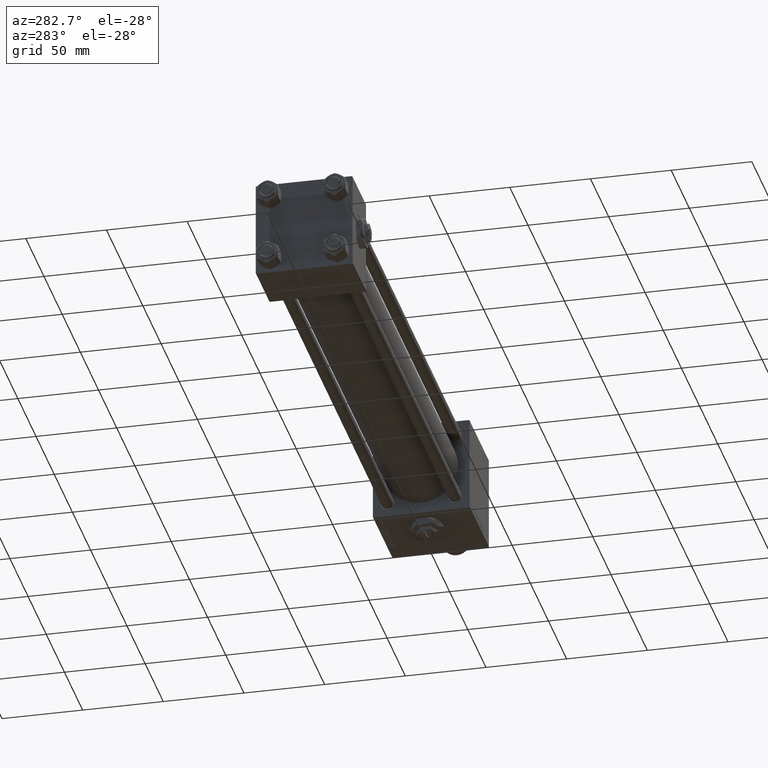
[diagram: clean part render]
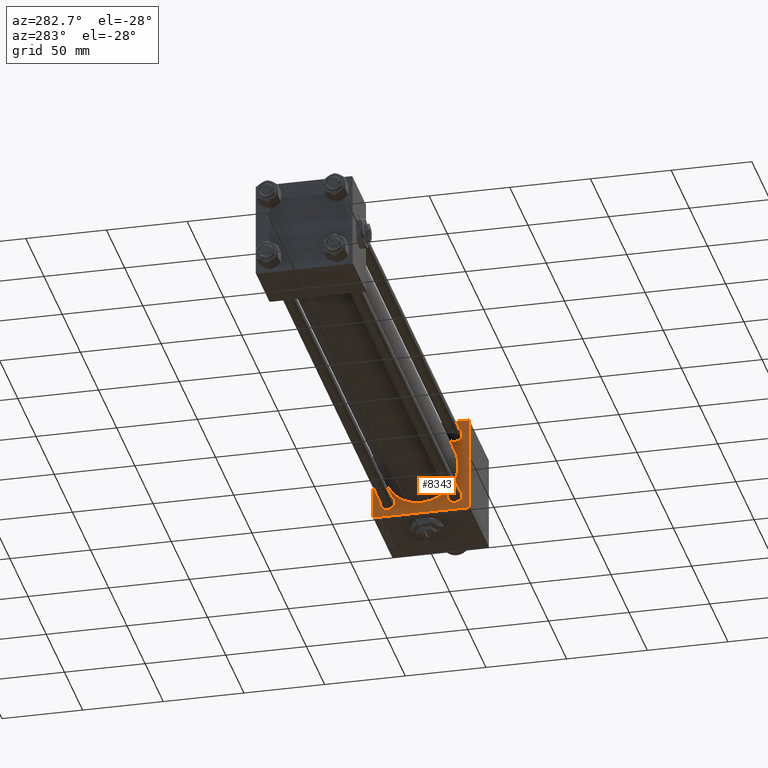
[diagram: same view with one face highlighted and labeled with its STEP entity id]
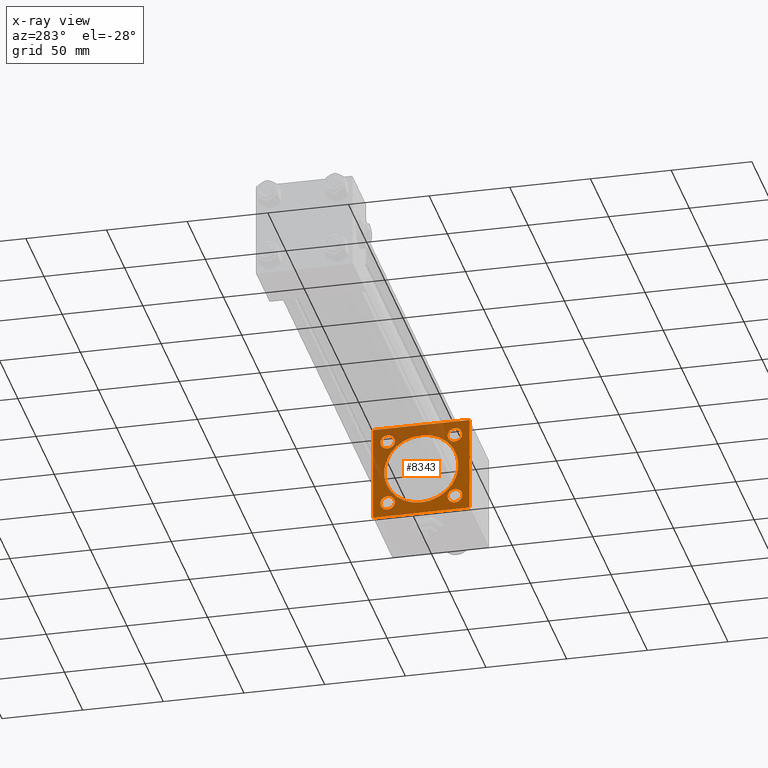
[diagram: x-ray of the same camera — body ghosted, the highlighted face saturated]
A machine part, auxiliary view. The second image highlights one B-rep face of the part: STEP entity #8343.
The next image is the same camera in x-ray: the body ghosted, the highlighted face saturated — about 32% of this face is hidden behind the body in this view.
In plain terms, the highlighted planar face has unit normal (-1, 0, 0).
Its self-contained STEP definition (entity closure, byte-faithful):
#339 = EDGE_CURVE ( 'NONE', #11931, #34737, #27460, .T. ) ;
#722 = CARTESIAN_POINT ( 'NONE',  ( 321.9999999999999432, 20.84999999999999787, -20.85000000000000142 ) ) ;
#1266 = EDGE_LOOP ( 'NONE', ( #37156, #42604 ) ) ;
#1337 = FACE_BOUND ( 'NONE', #16806, .T. ) ;
#2022 = VECTOR ( 'NONE', #23811, 1000.000000000000114 ) ;
#2183 = ORIENTED_EDGE ( 'NONE', *, *, #47264, .T. ) ;
#2337 = DIRECTION ( 'NONE',  ( 1.000000000000000000, -0.000000000000000000, 0.000000000000000000 ) ) ;
#2577 = CIRCLE ( 'NONE', #25502, 4.500000000000007105 ) ;
#2674 = CARTESIAN_POINT ( 'NONE',  ( 321.9999999999999432, -29.74999999999999645, -29.74999999999999645 ) ) ;
#3078 = LINE ( 'NONE', #51502, #2022 ) ;
#3226 = VECTOR ( 'NONE', #39651, 1000.000000000000114 ) ;
#4434 = AXIS2_PLACEMENT_3D ( 'NONE', #42180, #45932, #46195 ) ;
#4811 = CARTESIAN_POINT ( 'NONE',  ( 321.9999999999999432, 0.000000000000000000, 0.000000000000000000 ) ) ;
#5101 = EDGE_CURVE ( 'NONE', #16233, #6969, #3078, .T. ) ;
#5479 = LINE ( 'NONE', #18246, #7486 ) ;
#5594 = FACE_BOUND ( 'NONE', #8651, .T. ) ;
#5621 = ORIENTED_EDGE ( 'NONE', *, *, #29439, .T. ) ;
#5832 = EDGE_CURVE ( 'NONE', #40791, #6969, #32460, .T. ) ;
#6033 = ORIENTED_EDGE ( 'NONE', *, *, #5832, .F. ) ;
#6686 = DIRECTION ( 'NONE',  ( 0.000000000000000000, 0.000000000000000000, 1.000000000000000000 ) ) ;
#6966 = AXIS2_PLACEMENT_3D ( 'NONE', #11741, #23952, #6686 ) ;
#6969 = VERTEX_POINT ( 'NONE', #24152 ) ;
#6975 = CARTESIAN_POINT ( 'NONE',  ( 321.9999999999999432, -2.602085213965210642E-15, 0.000000000000000000 ) ) ;
#7171 = VERTEX_POINT ( 'NONE', #21218 ) ;
#7348 = LINE ( 'NONE', #21156, #46568 ) ;
#7486 = VECTOR ( 'NONE', #21700, 1000.000000000000000 ) ;
#7760 = ORIENTED_EDGE ( 'NONE', *, *, #34151, .T. ) ;
#8044 = ORIENTED_EDGE ( 'NONE', *, *, #51258, .T. ) ;
#8343 = ADVANCED_FACE ( 'NONE', ( #5594, #1337, #25023, #16801, #17575, #41521 ), #33268, .T. ) ;
#8410 = AXIS2_PLACEMENT_3D ( 'NONE', #9290, #42776, #22032 ) ;
#8547 = EDGE_LOOP ( 'NONE', ( #9555, #15911 ) ) ;
#8651 = EDGE_LOOP ( 'NONE', ( #2183, #43946 ) ) ;
#8684 = CARTESIAN_POINT ( 'NONE',  ( 321.9999999999999432, -20.84999999999999076, -20.85000000000000497 ) ) ;
#8994 = DIRECTION ( 'NONE',  ( -0.000000000000000000, -0.7071067811865474617, -0.7071067811865474617 ) ) ;
#9290 = CARTESIAN_POINT ( 'NONE',  ( 321.9999999999999432, 20.84999999999999787, 20.85000000000000142 ) ) ;
#9442 = VERTEX_POINT ( 'NONE', #19220 ) ;
#9555 = ORIENTED_EDGE ( 'NONE', *, *, #10619, .T. ) ;
#10205 = DIRECTION ( 'NONE',  ( 0.000000000000000000, 0.000000000000000000, 1.000000000000000000 ) ) ;
#10429 = DIRECTION ( 'NONE',  ( 1.000000000000000000, -0.000000000000000000, 0.000000000000000000 ) ) ;
#10619 = EDGE_CURVE ( 'NONE', #30481, #9442, #32806, .T. ) ;
#11227 = EDGE_CURVE ( 'NONE', #34737, #11931, #22624, .T. ) ;
#11741 = CARTESIAN_POINT ( 'NONE',  ( 321.9999999999999432, -20.84999999999999076, 20.85000000000000497 ) ) ;
#11923 = VERTEX_POINT ( 'NONE', #31714 ) ;
#11931 = VERTEX_POINT ( 'NONE', #51679 ) ;
#12974 = DIRECTION ( 'NONE',  ( 1.000000000000000000, -0.000000000000000000, 0.000000000000000000 ) ) ;
#13471 = DIRECTION ( 'NONE',  ( 0.000000000000000000, 0.000000000000000000, -1.000000000000000000 ) ) ;
#14350 = CIRCLE ( 'NONE', #26192, 4.500000000000007105 ) ;
#14600 = CARTESIAN_POINT ( 'NONE',  ( 321.9999999999999432, -30.00000000000000000, 29.50000000000004619 ) ) ;
#15791 = DIRECTION ( 'NONE',  ( 0.000000000000000000, 0.7071067811865474617, -0.7071067811865474617 ) ) ;
#15911 = ORIENTED_EDGE ( 'NONE', *, *, #16268, .T. ) ;
#16176 = EDGE_CURVE ( 'NONE', #28272, #23732, #45769, .T. ) ;
#16233 = VERTEX_POINT ( 'NONE', #14600 ) ;
#16268 = EDGE_CURVE ( 'NONE', #9442, #30481, #14350, .T. ) ;
#16801 = FACE_BOUND ( 'NONE', #8547, .T. ) ;
#16806 = EDGE_LOOP ( 'NONE', ( #27942, #7760 ) ) ;
#17575 = FACE_BOUND ( 'NONE', #1266, .T. ) ;
#18246 = CARTESIAN_POINT ( 'NONE',  ( 321.9999999999999432, 30.00000000000000000, -29.99999999999999289 ) ) ;
#18499 = EDGE_CURVE ( 'NONE', #45139, #7171, #5479, .T. ) ;
#19220 = CARTESIAN_POINT ( 'NONE',  ( 321.9999999999999432, -20.84999999999999076, -25.35000000000001208 ) ) ;
#20540 = AXIS2_PLACEMENT_3D ( 'NONE', #722, #12974, #36903 ) ;
#21017 = ORIENTED_EDGE ( 'NONE', *, *, #25971, .T. ) ;
#21040 = DIRECTION ( 'NONE',  ( -1.000000000000000000, 0.000000000000000000, -0.000000000000000000 ) ) ;
#21156 = CARTESIAN_POINT ( 'NONE',  ( 321.9999999999999432, 30.00000000000000000, 30.00000000000000000 ) ) ;
#21218 = CARTESIAN_POINT ( 'NONE',  ( 321.9999999999999432, -29.50000000000000000, -30.00000000000000000 ) ) ;
#21422 = DIRECTION ( 'NONE',  ( 1.000000000000000000, -0.000000000000000000, 0.000000000000000000 ) ) ;
#21700 = DIRECTION ( 'NONE',  ( 0.000000000000000000, -1.000000000000000000, -1.156482317317871478E-16 ) ) ;
#21814 = DIRECTION ( 'NONE',  ( -0.000000000000000000, 0.000000000000000000, 1.000000000000000000 ) ) ;
#21850 = CARTESIAN_POINT ( 'NONE',  ( 321.9999999999999432, 20.84999999999999787, -20.85000000000000142 ) ) ;
#22032 = DIRECTION ( 'NONE',  ( 0.000000000000000000, 0.000000000000000000, 1.000000000000000000 ) ) ;
#22624 = CIRCLE ( 'NONE', #26876, 23.00000000000000000 ) ;
#22798 = CARTESIAN_POINT ( 'NONE',  ( 321.9999999999999432, -20.84999999999999076, 16.34999999999999787 ) ) ;
#23732 = VERTEX_POINT ( 'NONE', #26528 ) ;
#23811 = DIRECTION ( 'NONE',  ( -0.000000000000000000, 0.7071067811865474617, 0.7071067811865474617 ) ) ;
#23952 = DIRECTION ( 'NONE',  ( 1.000000000000000000, -0.000000000000000000, 0.000000000000000000 ) ) ;
#23974 = DIRECTION ( 'NONE',  ( 0.000000000000000000, 0.000000000000000000, -1.000000000000000000 ) ) ;
#24152 = CARTESIAN_POINT ( 'NONE',  ( 321.9999999999999432, -29.50000000000005329, 29.99999999999999289 ) ) ;
#24408 = LINE ( 'NONE', #49438, #49225 ) ;
#24476 = EDGE_CURVE ( 'NONE', #37820, #11923, #2577, .T. ) ;
#24543 = CARTESIAN_POINT ( 'NONE',  ( 321.9999999999999432, 29.74999999999999645, 29.74999999999999645 ) ) ;
#25023 = FACE_BOUND ( 'NONE', #38043, .T. ) ;
#25501 = EDGE_CURVE ( 'NONE', #43623, #39707, #29897, .T. ) ;
#25502 = AXIS2_PLACEMENT_3D ( 'NONE', #21850, #10429, #38086 ) ;
#25631 = CARTESIAN_POINT ( 'NONE',  ( 321.9999999999999432, 30.00000000000000000, -29.49999999999997868 ) ) ;
#25667 = DIRECTION ( 'NONE',  ( 0.000000000000000000, 0.000000000000000000, 1.000000000000000000 ) ) ;
#25971 = EDGE_CURVE ( 'NONE', #48580, #45139, #24408, .T. ) ;
#26192 = AXIS2_PLACEMENT_3D ( 'NONE', #31587, #2337, #26797 ) ;
#26528 = CARTESIAN_POINT ( 'NONE',  ( 321.9999999999999432, 20.84999999999999787, 16.34999999999999432 ) ) ;
#26797 = DIRECTION ( 'NONE',  ( 0.000000000000000000, 0.000000000000000000, 1.000000000000000000 ) ) ;
#26876 = AXIS2_PLACEMENT_3D ( 'NONE', #6975, #48203, #23974 ) ;
#27460 = CIRCLE ( 'NONE', #35086, 23.00000000000000000 ) ;
#27942 = ORIENTED_EDGE ( 'NONE', *, *, #16176, .T. ) ;
#28272 = VERTEX_POINT ( 'NONE', #31968 ) ;
#28707 = CARTESIAN_POINT ( 'NONE',  ( 321.9999999999999432, 2.146024240737016609E-16, -23.00000000000000000 ) ) ;
#29035 = CIRCLE ( 'NONE', #20540, 4.500000000000007105 ) ;
#29154 = DIRECTION ( 'NONE',  ( 1.000000000000000000, 0.000000000000000000, 0.000000000000000000 ) ) ;
#29439 = EDGE_CURVE ( 'NONE', #7171, #41816, #35120, .T. ) ;
#29597 = EDGE_CURVE ( 'NONE', #41919, #48580, #7348, .T. ) ;
#29897 = CIRCLE ( 'NONE', #6966, 4.500000000000007105 ) ;
#30481 = VERTEX_POINT ( 'NONE', #30706 ) ;
#30706 = CARTESIAN_POINT ( 'NONE',  ( 321.9999999999999432, -20.84999999999999076, -16.34999999999999787 ) ) ;
#31235 = CARTESIAN_POINT ( 'NONE',  ( 321.9999999999999432, 29.50000000000000000, 30.00000000000000000 ) ) ;
#31587 = CARTESIAN_POINT ( 'NONE',  ( 321.9999999999999432, -20.84999999999999076, -20.85000000000000497 ) ) ;
#31714 = CARTESIAN_POINT ( 'NONE',  ( 321.9999999999999432, 20.84999999999999787, -25.35000000000000853 ) ) ;
#31941 = ORIENTED_EDGE ( 'NONE', *, *, #24476, .T. ) ;
#31968 = CARTESIAN_POINT ( 'NONE',  ( 321.9999999999999432, 20.84999999999999787, 25.35000000000000853 ) ) ;
#31976 = AXIS2_PLACEMENT_3D ( 'NONE', #8684, #21422, #25667 ) ;
#32205 = DIRECTION ( 'NONE',  ( 0.000000000000000000, -1.000000000000000000, -1.156482317317871478E-16 ) ) ;
#32460 = LINE ( 'NONE', #41233, #34331 ) ;
#32806 = CIRCLE ( 'NONE', #31976, 4.500000000000007105 ) ;
#32819 = ORIENTED_EDGE ( 'NONE', *, *, #18499, .T. ) ;
#32833 = CARTESIAN_POINT ( 'NONE',  ( 321.9999999999999432, -30.00000000000000000, 29.99999999999999289 ) ) ;
#33268 = PLANE ( 'NONE',  #52294 ) ;
#34151 = EDGE_CURVE ( 'NONE', #23732, #28272, #41500, .T. ) ;
#34331 = VECTOR ( 'NONE', #32205, 1000.000000000000000 ) ;
#34388 = CARTESIAN_POINT ( 'NONE',  ( 321.9999999999999432, 20.84999999999999787, 20.85000000000000142 ) ) ;
#34737 = VERTEX_POINT ( 'NONE', #28707 ) ;
#35086 = AXIS2_PLACEMENT_3D ( 'NONE', #41657, #29154, #13471 ) ;
#35120 = LINE ( 'NONE', #2674, #3226 ) ;
#35178 = CARTESIAN_POINT ( 'NONE',  ( 321.9999999999999432, 30.00000000000000000, 29.50000000000000000 ) ) ;
#36679 = ORIENTED_EDGE ( 'NONE', *, *, #5101, .T. ) ;
#36903 = DIRECTION ( 'NONE',  ( 0.000000000000000000, 0.000000000000000000, 1.000000000000000000 ) ) ;
#37156 = ORIENTED_EDGE ( 'NONE', *, *, #339, .T. ) ;
#37574 = CIRCLE ( 'NONE', #4434, 4.500000000000007105 ) ;
#37820 = VERTEX_POINT ( 'NONE', #41207 ) ;
#38043 = EDGE_LOOP ( 'NONE', ( #31941, #51085 ) ) ;
#38086 = DIRECTION ( 'NONE',  ( 0.000000000000000000, 0.000000000000000000, 1.000000000000000000 ) ) ;
#38109 = ORIENTED_EDGE ( 'NONE', *, *, #44983, .F. ) ;
#38347 = VECTOR ( 'NONE', #49087, 1000.000000000000000 ) ;
#39651 = DIRECTION ( 'NONE',  ( 0.000000000000000000, -0.7071067811865474617, 0.7071067811865474617 ) ) ;
#39707 = VERTEX_POINT ( 'NONE', #47595 ) ;
#40791 = VERTEX_POINT ( 'NONE', #31235 ) ;
#41043 = LINE ( 'NONE', #24543, #51324 ) ;
#41207 = CARTESIAN_POINT ( 'NONE',  ( 321.9999999999999432, 20.84999999999999787, -16.34999999999999432 ) ) ;
#41233 = CARTESIAN_POINT ( 'NONE',  ( 321.9999999999999432, 30.00000000000000000, 30.00000000000000000 ) ) ;
#41500 = CIRCLE ( 'NONE', #47443, 4.500000000000007105 ) ;
#41521 = FACE_OUTER_BOUND ( 'NONE', #48398, .T. ) ;
#41657 = CARTESIAN_POINT ( 'NONE',  ( 321.9999999999999432, -2.602085213965210642E-15, 0.000000000000000000 ) ) ;
#41816 = VERTEX_POINT ( 'NONE', #43437 ) ;
#41919 = VERTEX_POINT ( 'NONE', #35178 ) ;
#42180 = CARTESIAN_POINT ( 'NONE',  ( 321.9999999999999432, -20.84999999999999076, 20.85000000000000497 ) ) ;
#42604 = ORIENTED_EDGE ( 'NONE', *, *, #11227, .T. ) ;
#42776 = DIRECTION ( 'NONE',  ( 1.000000000000000000, -0.000000000000000000, 0.000000000000000000 ) ) ;
#43437 = CARTESIAN_POINT ( 'NONE',  ( 321.9999999999999432, -30.00000000000000000, -29.49999999999998579 ) ) ;
#43623 = VERTEX_POINT ( 'NONE', #22798 ) ;
#43946 = ORIENTED_EDGE ( 'NONE', *, *, #25501, .T. ) ;
#44983 = EDGE_CURVE ( 'NONE', #16233, #41816, #45098, .T. ) ;
#45098 = LINE ( 'NONE', #32833, #38347 ) ;
#45139 = VERTEX_POINT ( 'NONE', #50136 ) ;
#45629 = DIRECTION ( 'NONE',  ( 0.000000000000000000, 0.000000000000000000, -1.000000000000000000 ) ) ;
#45769 = CIRCLE ( 'NONE', #8410, 4.500000000000007105 ) ;
#45820 = EDGE_CURVE ( 'NONE', #11923, #37820, #29035, .T. ) ;
#45932 = DIRECTION ( 'NONE',  ( 1.000000000000000000, -0.000000000000000000, 0.000000000000000000 ) ) ;
#46195 = DIRECTION ( 'NONE',  ( 0.000000000000000000, 0.000000000000000000, 1.000000000000000000 ) ) ;
#46568 = VECTOR ( 'NONE', #45629, 1000.000000000000000 ) ;
#46650 = DIRECTION ( 'NONE',  ( 1.000000000000000000, -0.000000000000000000, 0.000000000000000000 ) ) ;
#47264 = EDGE_CURVE ( 'NONE', #39707, #43623, #37574, .T. ) ;
#47443 = AXIS2_PLACEMENT_3D ( 'NONE', #34388, #46650, #10205 ) ;
#47595 = CARTESIAN_POINT ( 'NONE',  ( 321.9999999999999432, -20.84999999999999076, 25.35000000000001208 ) ) ;
#48203 = DIRECTION ( 'NONE',  ( 1.000000000000000000, 0.000000000000000000, 0.000000000000000000 ) ) ;
#48398 = EDGE_LOOP ( 'NONE', ( #32819, #5621, #38109, #36679, #6033, #8044, #51134, #21017 ) ) ;
#48580 = VERTEX_POINT ( 'NONE', #25631 ) ;
#49087 = DIRECTION ( 'NONE',  ( 0.000000000000000000, 0.000000000000000000, -1.000000000000000000 ) ) ;
#49225 = VECTOR ( 'NONE', #8994, 1000.000000000000114 ) ;
#49438 = CARTESIAN_POINT ( 'NONE',  ( 321.9999999999999432, 29.74999999999999645, -29.74999999999999645 ) ) ;
#50136 = CARTESIAN_POINT ( 'NONE',  ( 321.9999999999999432, 29.50000000000000000, -29.99999999999999289 ) ) ;
#51085 = ORIENTED_EDGE ( 'NONE', *, *, #45820, .T. ) ;
#51134 = ORIENTED_EDGE ( 'NONE', *, *, #29597, .T. ) ;
#51258 = EDGE_CURVE ( 'NONE', #40791, #41919, #41043, .T. ) ;
#51324 = VECTOR ( 'NONE', #15791, 1000.000000000000114 ) ;
#51502 = CARTESIAN_POINT ( 'NONE',  ( 321.9999999999999432, -29.75000000000001776, 29.75000000000001776 ) ) ;
#51679 = CARTESIAN_POINT ( 'NONE',  ( 321.9999999999999432, -2.602085213965210642E-15, 23.00000000000000000 ) ) ;
#52294 = AXIS2_PLACEMENT_3D ( 'NONE', #4811, #21040, #21814 ) ;